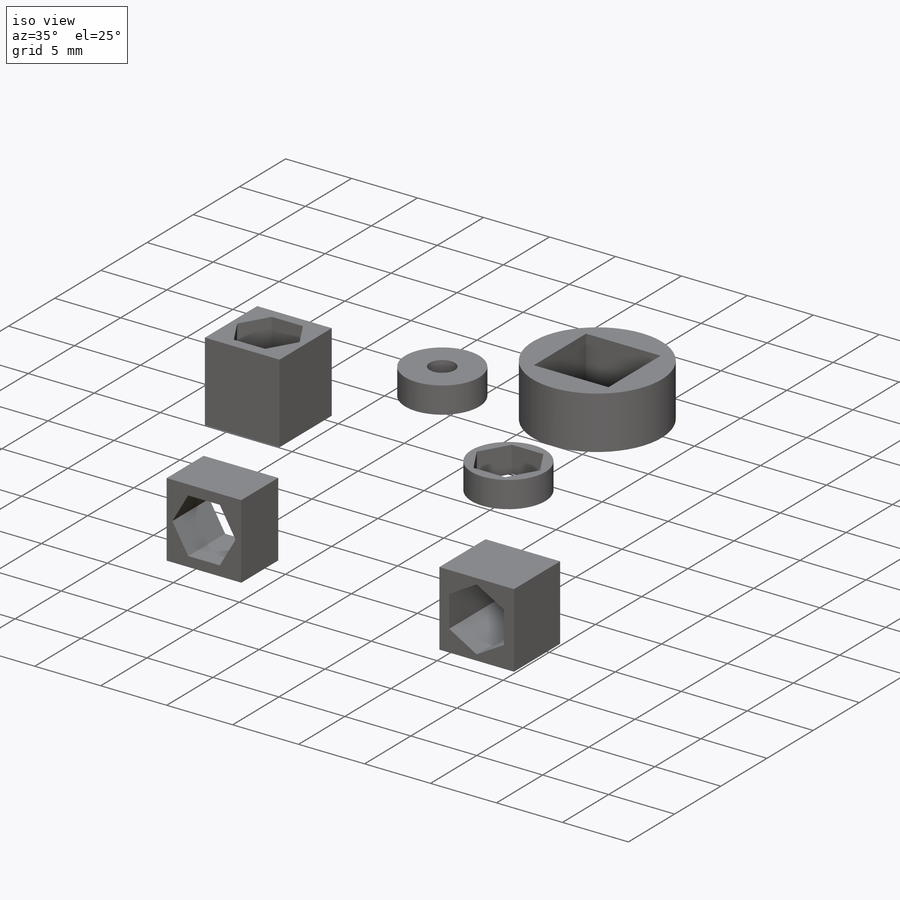
[diagram: iso view]
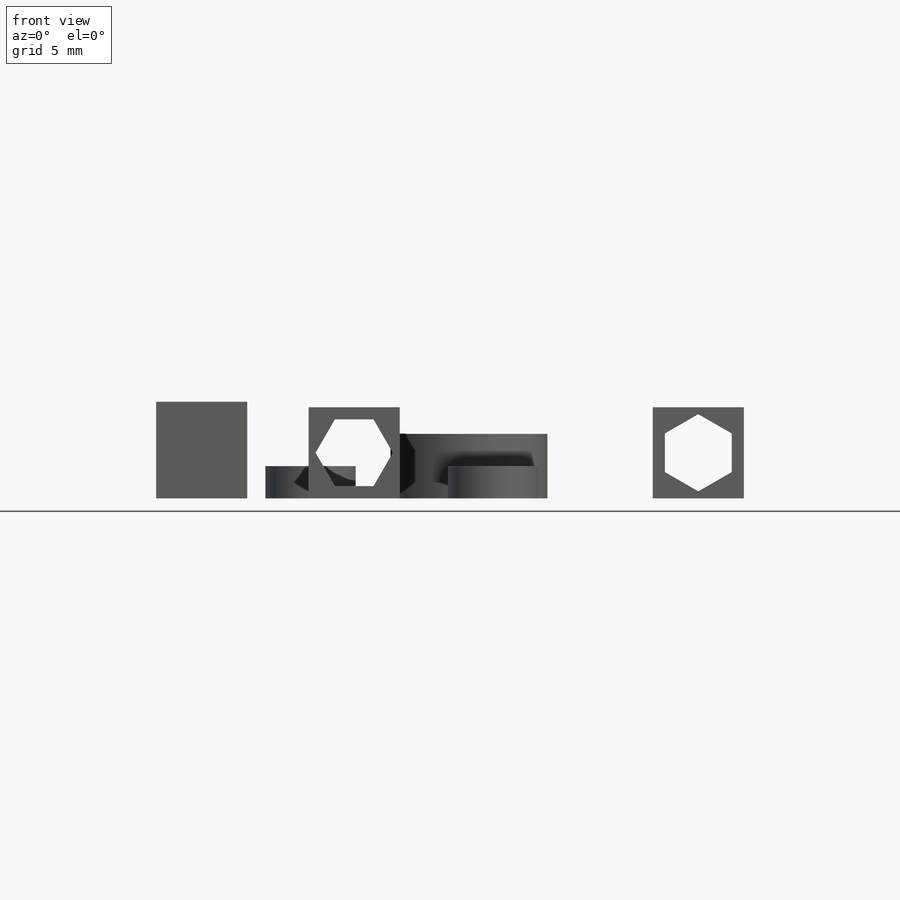
[diagram: front view]
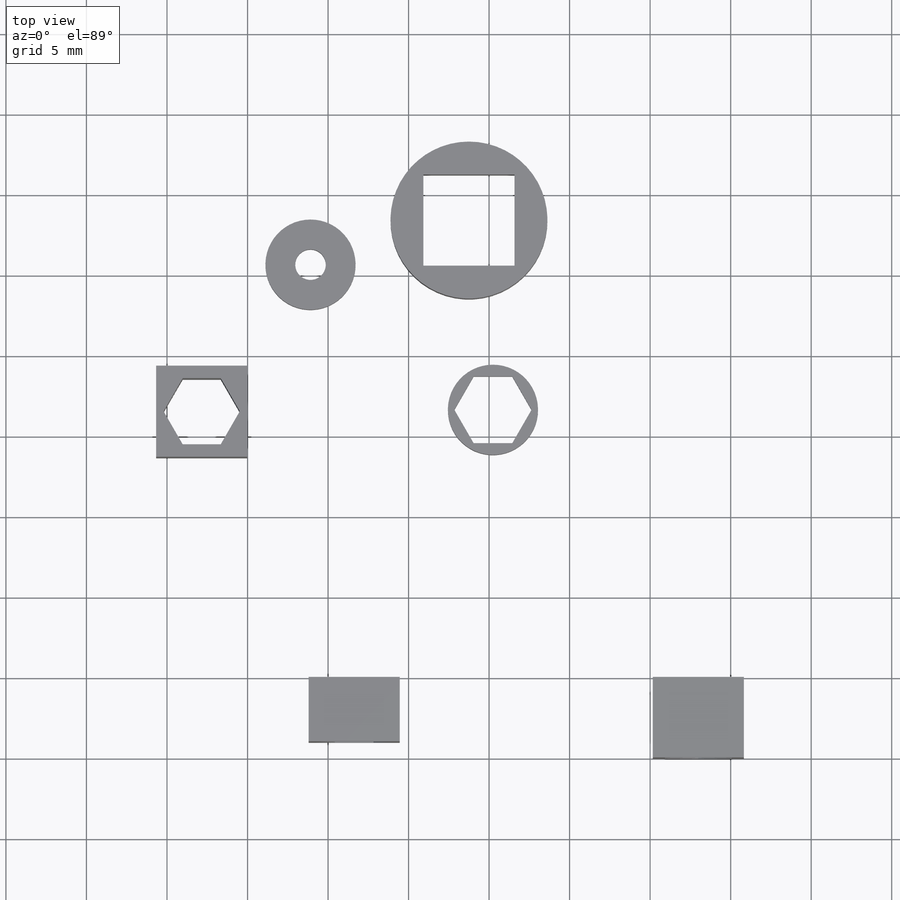
[diagram: top view]
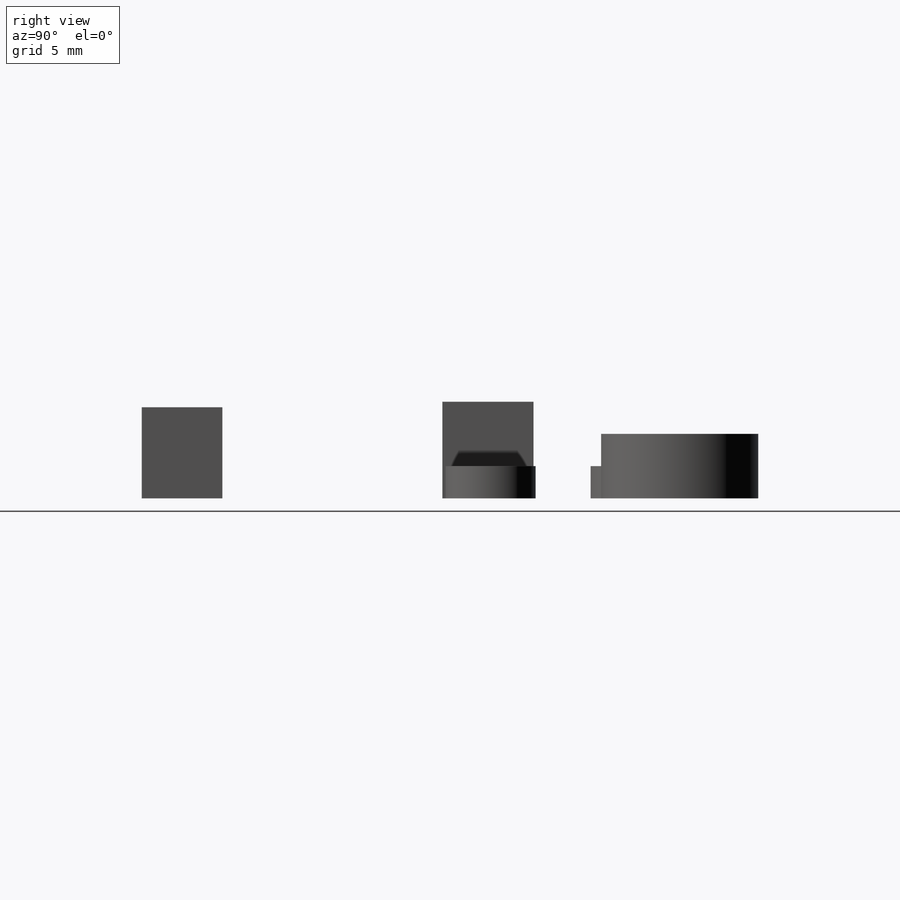
[diagram: right view]
SOLIDWORKS PART (.sldprt)
format: sldprt  version: not decoded by parser v0  size: 299,008 bytes
history: native  units: mm
features: sketch x11, extrude x6, cut_extrude x5, plane x3, material x1 (+9 scaffold rows collapsed)
feature tree (35):
  scaffold x9  (default folders/planes/origin — collapsed)
  material  "材质 <未指定>"
  plane  "前视基准面"
  plane  "上视基准面"
  plane  "右视基准面"
  sketch  "草图1"  dims[c1.D2=5.6mm c1.D4=5.6mm c1.D5=1.9mm c1.D6=5.6mm c1.D1=8.0mm c2.D2=4.0mm c2.D3=4.15mm c2.D6=4.1mm]
  extrude  "凸台-拉伸1"  Depth=6mm
  sketch  "草图2"
  cut_extrude  "切除-拉伸1"  Depth=4mm
  sketch  "草图3"
  cut_extrude  "切除-拉伸2"  Depth=4mm
  sketch  "草图4"  dims[D1=9.75mm D2=4.0mm D3=4.0mm]
  extrude  "凸台-拉伸2"  Depth=4mm
  sketch  "草图6"  dims[D1=4.0mm D2=4.0mm]
  sketch  "草图7"
  extrude  "凸台-拉伸3"  Depth=4mm
  sketch  "草图8"  dims[D1=4.15mm]
  cut_extrude  "切除-拉伸3"  Depth=4mm
  extrude  "凸台-拉伸4"  Depth=4mm
  sketch  "草图9"
  cut_extrude  "切除-拉伸4"  Depth=4mm
  sketch  "草图15"
  sketch  "草图16"  dims[c1.D1=~9.81224mm c2.D1=45.0deg c2.D2=8.0mm c3.D1=4.15mm]
  extrude  "凸台-拉伸5"  Depth=4mm
  sketch  "草图17"
  cut_extrude  "切除-拉伸5"  Depth=4mm
  extrude  "凸台-拉伸6"  Depth=5mm
decode coverage: 16 of 22 modeling features carry decoded parameters
note: ~ marks probable driven/reference dimensions
note: suppression state not decoded; provenance and decode notes live in map.json
